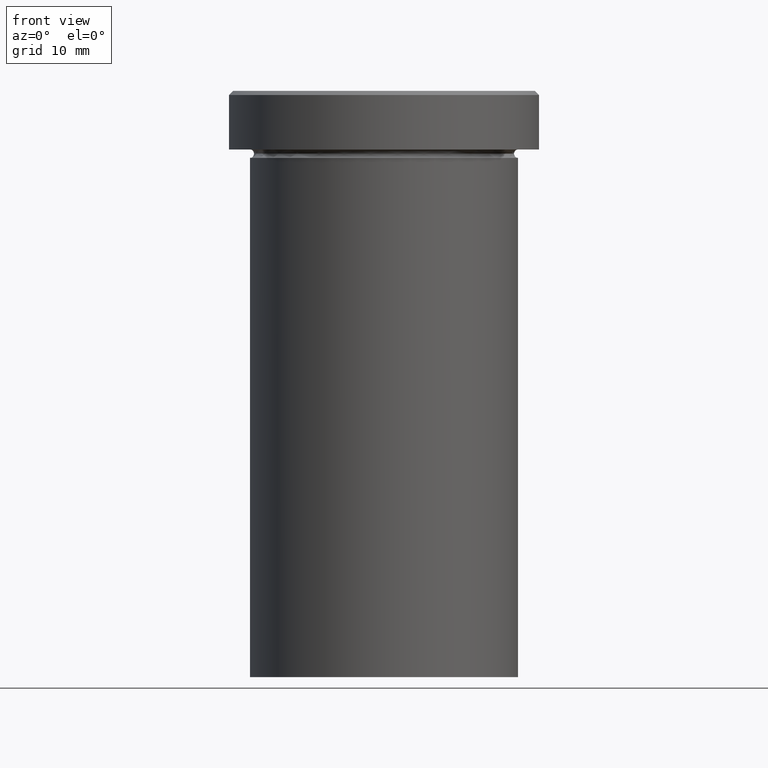
[diagram: clean part render]
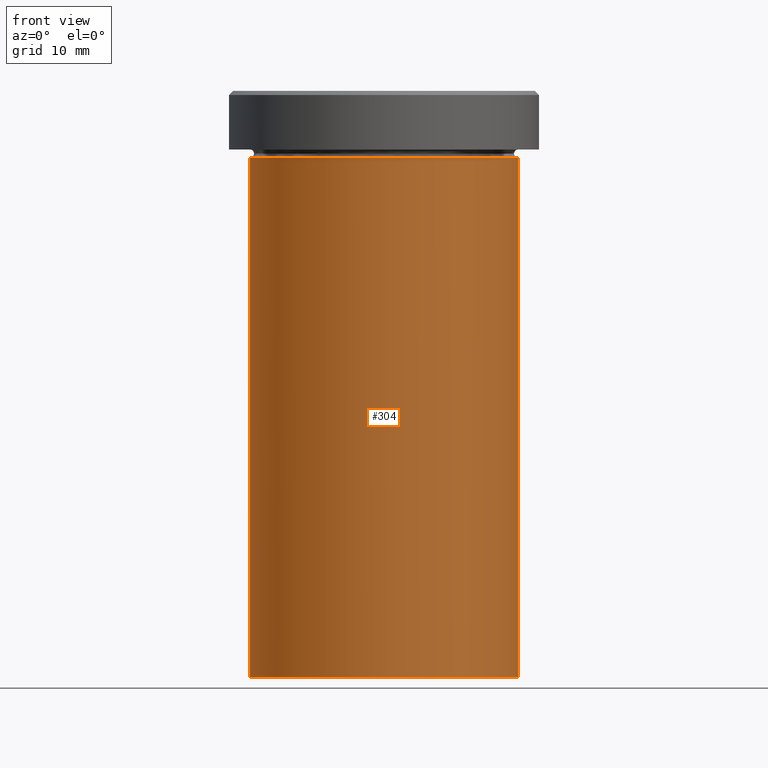
[diagram: same view with one face highlighted and labeled with its STEP entity id]
A machine part, front view. The second image highlights one B-rep face of the part: STEP entity #304.
In plain terms, the highlighted cylindrical surface (partial cylindrical patch) has radius 16 mm, axis along (-0, -0, 1).
Its self-contained STEP definition (entity closure, byte-faithful):
#1 = ORIENTED_EDGE ( 'NONE', *, *, #257, .T. ) ;
#11 = VERTEX_POINT ( 'NONE', #324 ) ;
#15 = LINE ( 'NONE', #136, #254 ) ;
#51 = VECTOR ( 'NONE', #210, 1000.000000000000000 ) ;
#52 = DIRECTION ( 'NONE',  ( -0.000000000000000000, -0.000000000000000000, 1.000000000000000000 ) ) ;
#58 = ORIENTED_EDGE ( 'NONE', *, *, #154, .F. ) ;
#61 = AXIS2_PLACEMENT_3D ( 'NONE', #406, #52, #369 ) ;
#81 = LINE ( 'NONE', #374, #51 ) ;
#86 = CIRCLE ( 'NONE', #333, 16.00000000000000000 ) ;
#87 = DIRECTION ( 'NONE',  ( -0.000000000000000000, -0.000000000000000000, 1.000000000000000000 ) ) ;
#88 = VERTEX_POINT ( 'NONE', #266 ) ;
#94 = EDGE_LOOP ( 'NONE', ( #242, #1, #175, #58 ) ) ;
#114 = CARTESIAN_POINT ( 'NONE',  ( 0.000000000000000000, 0.000000000000000000, -70.00000000000000000 ) ) ;
#116 = VERTEX_POINT ( 'NONE', #258 ) ;
#129 = FACE_OUTER_BOUND ( 'NONE', #94, .T. ) ;
#136 = CARTESIAN_POINT ( 'NONE',  ( -16.00000000000000000, 1.959434878635765131E-15, 0.000000000000000000 ) ) ;
#140 = EDGE_CURVE ( 'NONE', #11, #88, #15, .T. ) ;
#154 = EDGE_CURVE ( 'NONE', #88, #116, #262, .T. ) ;
#168 = DIRECTION ( 'NONE',  ( -0.000000000000000000, -0.000000000000000000, 1.000000000000000000 ) ) ;
#175 = ORIENTED_EDGE ( 'NONE', *, *, #199, .T. ) ;
#180 = AXIS2_PLACEMENT_3D ( 'NONE', #185, #352, #391 ) ;
#185 = CARTESIAN_POINT ( 'NONE',  ( 0.000000000000000000, 0.000000000000000000, 0.000000000000000000 ) ) ;
#199 = EDGE_CURVE ( 'NONE', #229, #116, #81, .T. ) ;
#210 = DIRECTION ( 'NONE',  ( -0.000000000000000000, -0.000000000000000000, 1.000000000000000000 ) ) ;
#220 = CYLINDRICAL_SURFACE ( 'NONE', #180, 16.00000000000000000 ) ;
#229 = VERTEX_POINT ( 'NONE', #336 ) ;
#242 = ORIENTED_EDGE ( 'NONE', *, *, #140, .F. ) ;
#254 = VECTOR ( 'NONE', #168, 1000.000000000000000 ) ;
#257 = EDGE_CURVE ( 'NONE', #11, #229, #86, .T. ) ;
#258 = CARTESIAN_POINT ( 'NONE',  ( 16.00000000000000000, 0.000000000000000000, -8.000000000000000000 ) ) ;
#262 = CIRCLE ( 'NONE', #61, 16.00000000000000000 ) ;
#266 = CARTESIAN_POINT ( 'NONE',  ( -16.00000000000000000, 1.959434878635765131E-15, -8.000000000000000000 ) ) ;
#304 = ADVANCED_FACE ( 'NONE', ( #129 ), #220, .T. ) ;
#324 = CARTESIAN_POINT ( 'NONE',  ( -16.00000000000000000, 1.959434878635765131E-15, -70.00000000000000000 ) ) ;
#333 = AXIS2_PLACEMENT_3D ( 'NONE', #114, #87, #335 ) ;
#335 = DIRECTION ( 'NONE',  ( 1.000000000000000000, 0.000000000000000000, 0.000000000000000000 ) ) ;
#336 = CARTESIAN_POINT ( 'NONE',  ( 16.00000000000000000, 0.000000000000000000, -70.00000000000000000 ) ) ;
#352 = DIRECTION ( 'NONE',  ( -0.000000000000000000, -0.000000000000000000, 1.000000000000000000 ) ) ;
#369 = DIRECTION ( 'NONE',  ( 1.000000000000000000, 0.000000000000000000, 0.000000000000000000 ) ) ;
#374 = CARTESIAN_POINT ( 'NONE',  ( 16.00000000000000000, 0.000000000000000000, 0.000000000000000000 ) ) ;
#391 = DIRECTION ( 'NONE',  ( 1.000000000000000000, 0.000000000000000000, 0.000000000000000000 ) ) ;
#406 = CARTESIAN_POINT ( 'NONE',  ( 0.000000000000000000, 0.000000000000000000, -8.000000000000000000 ) ) ;